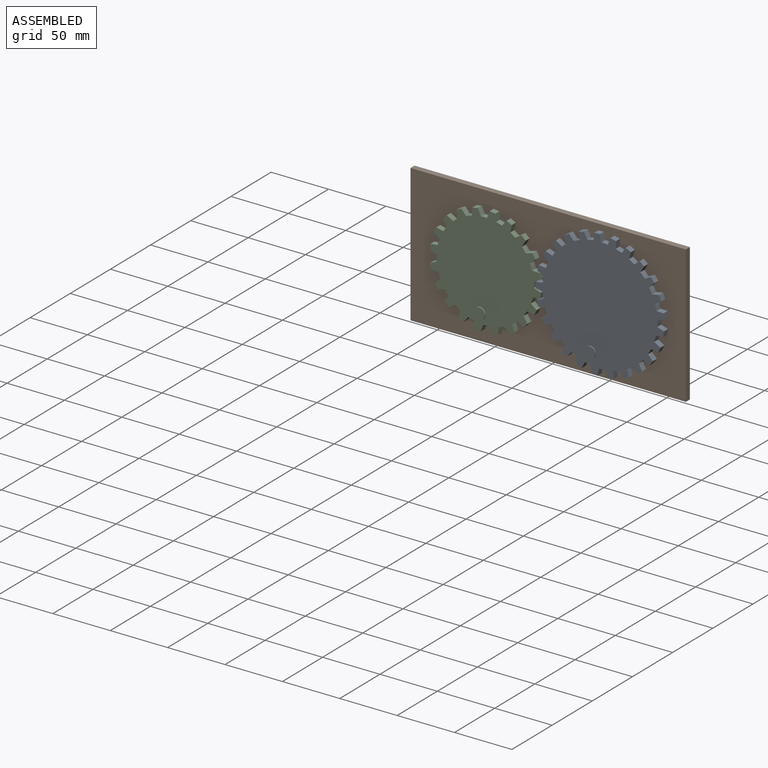
[diagram: assembled view]
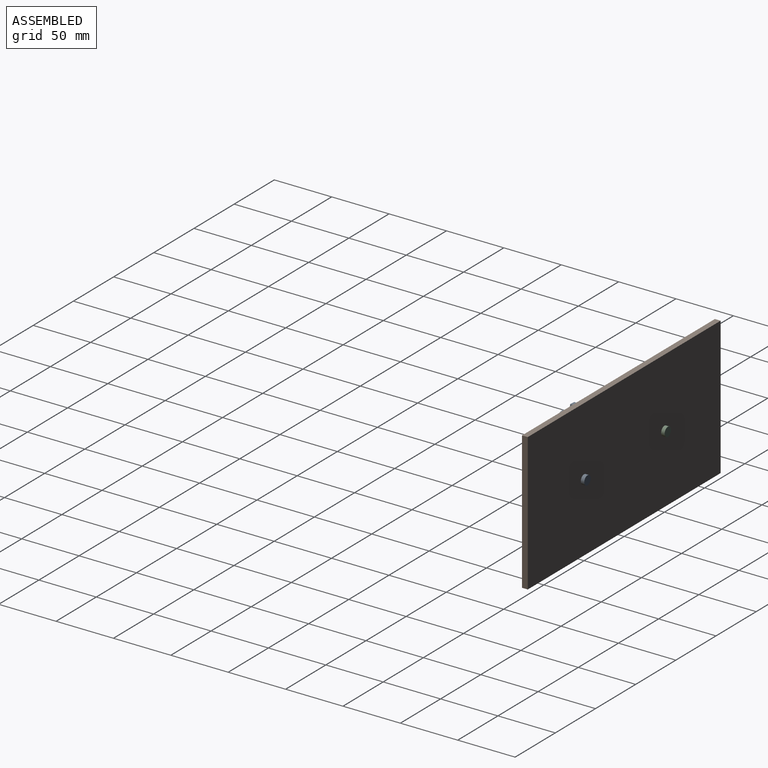
[diagram: assembled view, second angle]
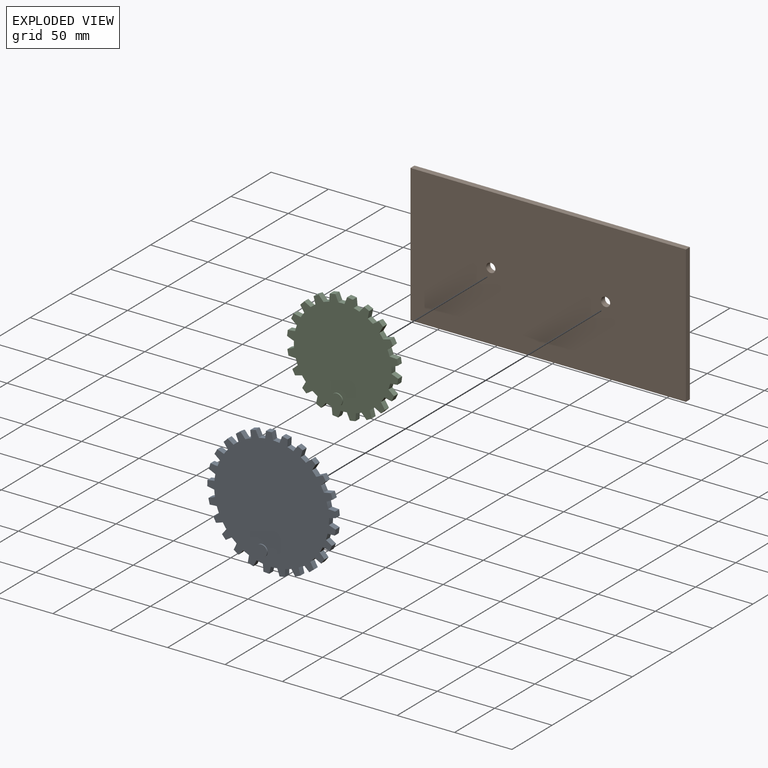
[diagram: exploded view]
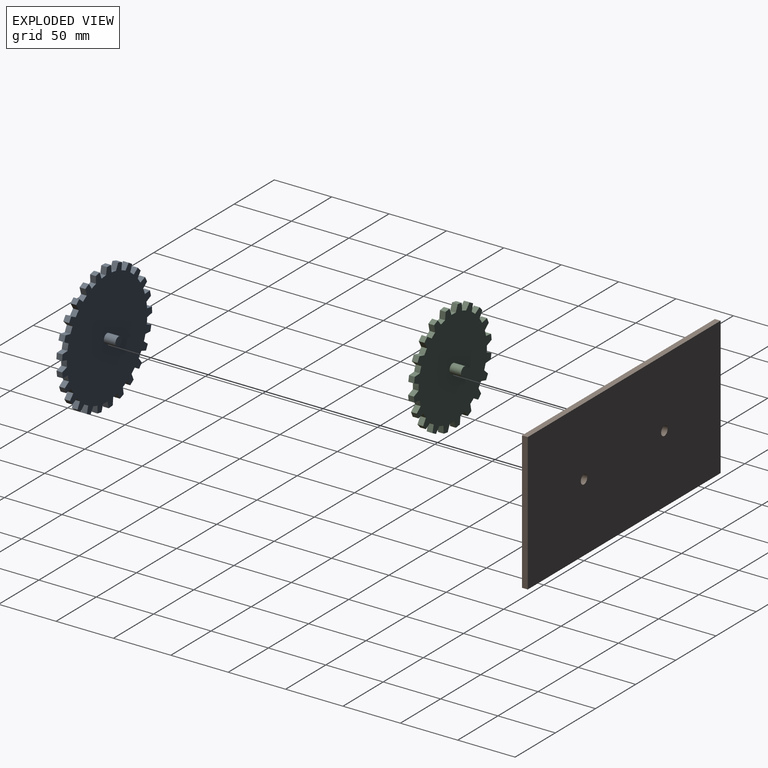
[diagram: exploded view, second angle]
ASSEMBLY  parts=3 mates=2
PART A: 106 faces, bbox 111.9x16x112.1 mm
  f0: cylinder r=4mm len=10mm, axis (0,-1,0), area 251.3mm2, adj f1,f103
  f1: plane 8x8mm, normal (0,1,0), area 50.3mm2, adj f0
  f2: plane 112.09x111.87mm, normal (0,-1,0), area 8679.5mm2, adj f3,f4,f5,f6,f7,f8,f9,f10
  f3: plane 6.13x5mm, normal (0.99,0,0.15), area 31mm2, adj f2,f4,f102,f103
  f4: cylinder r=50mm len=5.03mm, axis (0,1,0), area 27.8mm2, adj f2,f3,f5,f103
  f5: plane 5x4.63mm, normal (-0.75,0,-0.66), area 31mm2, adj f2,f4,f6,f103
  f6: plane 5x4.22mm, normal (0.54,0,-0.84), area 25mm2, adj f2,f5,f7,f103
  f7: plane 5.71x5mm, normal (0.92,0,0.39), area 31mm2, adj f2,f6,f8,f103
  f8: cylinder r=50mm len=5mm, axis (0,1,0), area 27.8mm2, adj f2,f7,f9,f103
  f9: plane 5.15x5mm, normal (-0.56,0,-0.83), area 31mm2, adj f2,f8,f10,f103
  f10: plane 5x3.65mm, normal (0.73,0,-0.68), area 25mm2, adj f2,f9,f11,f103
  f11: plane 5x4.92mm, normal (0.79,0,0.61), area 31mm2, adj f2,f10,f12,f103
  f12: cylinder r=50mm len=5mm, axis (0,1,0), area 27.8mm2, adj f2,f11,f13,f103
  f13: plane 5.85x5mm, normal (-0.33,0,-0.94), area 31mm2, adj f2,f12,f14,f103
  f14: plane 5x4.38mm, normal (0.88,0,-0.48), area 25mm2, adj f2,f13,f15,f103
  f15: plane 5x4.88mm, normal (0.62,0,0.79), area 31mm2, adj f2,f14,f16,f103
  f16: cylinder r=50mm len=5.17mm, axis (0,1,0), area 27.8mm2, adj f2,f15,f17,f103
  f17: plane 6.18x5mm, normal (-0.09,0,-1), area 31mm2, adj f2,f16,f18,f103
  f18: plane 5x4.84mm, normal (0.97,0,-0.25), area 25mm2, adj f2,f17,f19,f103
  f19: plane 5.68x5mm, normal (0.4,0,0.92), area 31mm2, adj f2,f18,f20,f103
  f20: cylinder r=50mm len=5.51mm, axis (0,1,0), area 27.8mm2, adj f2,f19,f21,f103
  f21: plane 6.12x5mm, normal (0.16,0,-0.99), area 31mm2, adj f2,f20,f22,f103
  f22: plane 5x5mm, normal (1,0,0), area 25mm2, adj f2,f21,f23,f103
  f23: plane 6.12x5mm, normal (0.16,0,0.99), area 31mm2, adj f2,f22,f24,f103
  f24: cylinder r=50mm len=5.51mm, axis (0,1,0), area 27.8mm2, adj f2,f23,f25,f103
  f25: plane 5.68x5mm, normal (0.4,0,-0.92), area 31mm2, adj f2,f24,f26,f103
  f26: plane 5x4.84mm, normal (0.97,0,0.25), area 25mm2, adj f2,f25,f27,f103
  f27: plane 6.18x5mm, normal (-0.09,0,1), area 31mm2, adj f2,f26,f28,f103
  f28: cylinder r=50mm len=5.17mm, axis (0,1,0), area 27.8mm2, adj f2,f27,f29,f103
  f29: plane 5x4.88mm, normal (0.62,0,-0.79), area 31mm2, adj f2,f28,f30,f103
  f30: plane 5x4.38mm, normal (0.88,0,0.48), area 25mm2, adj f2,f29,f31,f103
  f31: plane 5.85x5mm, normal (-0.33,0,0.94), area 31mm2, adj f2,f30,f32,f103
  f32: cylinder r=50mm len=5mm, axis (0,1,0), area 27.8mm2, adj f2,f31,f33,f103
  f33: plane 5x4.92mm, normal (0.79,0,-0.61), area 31mm2, adj f2,f32,f34,f103
  f34: plane 5x3.65mm, normal (0.73,0,0.68), area 25mm2, adj f2,f33,f35,f103
  f35: plane 5.15x5mm, normal (-0.56,0,0.83), area 31mm2, adj f2,f34,f36,f103
  f36: cylinder r=50mm len=5mm, axis (0,1,0), area 27.8mm2, adj f2,f35,f37,f103
  f37: plane 5.71x5mm, normal (0.92,0,-0.39), area 31mm2, adj f2,f36,f38,f103
  f38: plane 5x4.22mm, normal (0.54,0,0.84), area 25mm2, adj f2,f37,f39,f103
  f39: plane 5x4.63mm, normal (-0.75,0,0.66), area 31mm2, adj f2,f38,f40,f103
  f40: cylinder r=50mm len=5.03mm, axis (0,1,0), area 27.8mm2, adj f2,f39,f41,f103
  f41: plane 6.13x5mm, normal (0.99,0,-0.15), area 31mm2, adj f2,f40,f42,f103
  f42: plane 5x4.76mm, normal (0.31,0,0.95), area 25mm2, adj f2,f41,f43,f103
  f43: plane 5.51x5mm, normal (-0.89,0,0.46), area 31mm2, adj f2,f42,f44,f103
  f44: cylinder r=50mm len=5.46mm, axis (0,1,0), area 27.8mm2, adj f2,f43,f45,f103
  f45: plane 6.17x5mm, normal (1,0,0.1), area 31mm2, adj f2,f44,f46,f103
  f46: plane 5x4.99mm, normal (0.06,0,1), area 25mm2, adj f2,f45,f47,f103
  f47: plane 6.05x5mm, normal (-0.97,0,0.22), area 31mm2, adj f2,f46,f48,f103
  f48: cylinder r=50mm len=5.55mm, axis (0,1,0), area 27.8mm2, adj f2,f47,f49,f103
  f49: plane 5.83x5mm, normal (0.94,0,0.34), area 31mm2, adj f2,f48,f50,f103
  f50: plane 5x4.91mm, normal (-0.19,0,0.98), area 25mm2, adj f2,f49,f51,f103
  f51: plane 6.2x5mm, normal (-1,0,-0.03), area 31mm2, adj f2,f50,f52,f103
  f52: cylinder r=50mm len=5.29mm, axis (0,1,0), area 27.8mm2, adj f2,f51,f53,f103
  f53: plane 5.11x5mm, normal (0.82,0,0.57), area 31mm2, adj f2,f52,f54,f103
  f54: plane 5x4.52mm, normal (-0.43,0,0.9), area 25mm2, adj f2,f53,f55,f103
  f55: plane 5.97x5mm, normal (-0.96,0,-0.27), area 31mm2, adj f2,f54,f56,f103
  f56: cylinder r=50mm len=5mm, axis (0,1,0), area 27.8mm2, adj f2,f55,f57,f103
  f57: plane 5x4.67mm, normal (0.66,0,0.75), area 31mm2, adj f2,f56,f58,f103
  f58: plane 5x3.85mm, normal (-0.64,0,0.77), area 25mm2, adj f2,f57,f59,f103
  f59: plane 5.36x5mm, normal (-0.86,0,-0.5), area 31mm2, adj f2,f58,f60,f103
  f60: cylinder r=50mm len=5mm, axis (0,1,0), area 27.8mm2, adj f2,f59,f61,f103
  f61: plane 5.54x5mm, normal (0.45,0,0.89), area 31mm2, adj f2,f60,f62,f103
  f62: plane 5x4.05mm, normal (-0.81,0,0.59), area 25mm2, adj f2,f61,f63,f103
  f63: plane 5x4.41mm, normal (-0.71,0,-0.7), area 31mm2, adj f2,f62,f64,f103
  f64: cylinder r=50mm len=5mm, axis (0,1,0), area 27.8mm2, adj f2,f63,f65,f103
  f65: plane 6.06x5mm, normal (0.21,0,0.98), area 31mm2, adj f2,f64,f66,f103
  f66: plane 5x4.65mm, normal (-0.93,0,0.37), area 25mm2, adj f2,f65,f67,f103
  f67: plane 5.32x5mm, normal (-0.51,0,-0.86), area 31mm2, adj f2,f66,f68,f103
  f68: cylinder r=50mm len=5.38mm, axis (0,1,0), area 27.8mm2, adj f2,f67,f69,f103
  f69: plane 6.2x5mm, normal (-0.04,0,1), area 31mm2, adj f2,f68,f70,f103
  f70: plane 5x4.96mm, normal (-0.99,0,0.13), area 25mm2, adj f2,f69,f71,f103
  f71: plane 5.95x5mm, normal (-0.28,0,-0.96), area 31mm2, adj f2,f70,f72,f103
  f72: cylinder r=50mm len=5.56mm, axis (0,1,0), area 27.8mm2, adj f2,f71,f73,f103
  f73: plane 5.95x5mm, normal (-0.28,0,0.96), area 31mm2, adj f2,f72,f74,f103
  f74: plane 5x4.96mm, normal (-0.99,0,-0.13), area 25mm2, adj f2,f73,f75,f103
  f75: plane 6.2x5mm, normal (-0.04,0,-1), area 31mm2, adj f2,f74,f76,f103
  f76: cylinder r=50mm len=5.38mm, axis (0,1,0), area 27.8mm2, adj f2,f75,f77,f103
  f77: plane 5.32x5mm, normal (-0.51,0,0.86), area 31mm2, adj f2,f76,f78,f103
  f78: plane 5x4.65mm, normal (-0.93,0,-0.37), area 25mm2, adj f2,f77,f79,f103
  f79: plane 6.06x5mm, normal (0.21,0,-0.98), area 31mm2, adj f2,f78,f80,f103
  f80: cylinder r=50mm len=5mm, axis (0,1,0), area 27.8mm2, adj f2,f79,f81,f103
  f81: plane 5x4.41mm, normal (-0.71,0,0.7), area 31mm2, adj f2,f80,f82,f103
  f82: plane 5x4.05mm, normal (-0.81,0,-0.59), area 25mm2, adj f2,f81,f83,f103
  f83: plane 5.54x5mm, normal (0.45,0,-0.89), area 31mm2, adj f2,f82,f84,f103
  f84: cylinder r=50mm len=5mm, axis (0,1,0), area 27.8mm2, adj f2,f83,f85,f103
  f85: plane 5.36x5mm, normal (-0.86,0,0.5), area 31mm2, adj f2,f84,f86,f103
  f86: plane 5x3.85mm, normal (-0.64,0,-0.77), area 25mm2, adj f2,f85,f87,f103
  f87: plane 5x4.67mm, normal (0.66,0,-0.75), area 31mm2, adj f2,f86,f88,f103
  f88: cylinder r=50mm len=5mm, axis (0,1,0), area 27.8mm2, adj f2,f87,f89,f103
  f89: plane 5.97x5mm, normal (-0.96,0,0.27), area 31mm2, adj f2,f88,f90,f103
  f90: plane 5x4.52mm, normal (-0.43,0,-0.9), area 25mm2, adj f2,f89,f91,f103
  f91: plane 5.11x5mm, normal (0.82,0,-0.57), area 31mm2, adj f2,f90,f92,f103
  f92: cylinder r=50mm len=5.29mm, axis (0,1,0), area 27.8mm2, adj f2,f91,f93,f103
  f93: plane 6.2x5mm, normal (-1,0,0.03), area 31mm2, adj f2,f92,f94,f103
  f94: plane 5x4.91mm, normal (-0.19,0,-0.98), area 25mm2, adj f2,f93,f95,f103
  f95: plane 5.83x5mm, normal (0.94,0,-0.34), area 31mm2, adj f2,f94,f96,f103
  f96: cylinder r=50mm len=5.55mm, axis (0,1,0), area 27.8mm2, adj f2,f95,f97,f103
  f97: plane 6.05x5mm, normal (-0.97,0,-0.22), area 31mm2, adj f2,f96,f98,f103
  f98: plane 5x4.99mm, normal (0.06,0,-1), area 25mm2, adj f2,f97,f99,f103
  f99: plane 6.17x5mm, normal (1,0,-0.1), area 31mm2, adj f2,f98,f100,f103
  f100: cylinder r=50mm len=5.46mm, axis (0,1,0), area 27.8mm2, adj f2,f99,f101,f103
  f101: plane 5.51x5mm, normal (-0.89,0,-0.46), area 31mm2, adj f2,f100,f102,f103
  f102: plane 5x4.76mm, normal (0.31,0,-0.95), area 25mm2, adj f2,f3,f101,f103
  f103: plane 112.09x111.87mm, normal (0,1,0), area 8707.8mm2, adj f0,f3,f4,f5,f6,f7,f8,f9
  f104: cylinder r=5mm len=10mm, axis (0,1,0), area 31.4mm2, adj f2,f105
  f105: plane 10x10mm, normal (0,-1,0), area 78.5mm2, adj f104
PART B: 8 faces, bbox 240x5x120 mm
  f0: plane 240x120mm, normal (0,-1,0), area 28699.5mm2, adj f2,f3,f4,f5,f6,f7
  f1: plane 240x120mm, normal (0,1,0), area 28699.5mm2, adj f2,f3,f4,f5,f6,f7
  f2: plane 240x5mm, normal (0,0,-1), area 1200mm2, adj f0,f1,f3,f5
  f3: plane 120x5mm, normal (1,0,0), area 600mm2, adj f0,f1,f2,f4
  f4: plane 240x5mm, normal (0,0,1), area 1200mm2, adj f0,f1,f3,f5
  f5: plane 120x5mm, normal (-1,0,0), area 600mm2, adj f0,f1,f2,f4
  f6: cylinder r=4mm len=8mm, axis (0,-1,0), area 125.7mm2, adj f0,f1
  f7: cylinder r=4mm len=8mm, axis (0,-1,0), area 125.7mm2, adj f0,f1
PART C: 86 faces, bbox 97x16x97 mm
  f0: cylinder r=42.5mm len=5mm, axis (0,1,0), area 26.7mm2, adj f25,f26,f74,f77
  f1: cylinder r=42.5mm len=5mm, axis (0,1,0), area 26.7mm2, adj f25,f26,f76,f80
  f2: cylinder r=42.5mm len=5mm, axis (0,1,0), area 26.7mm2, adj f25,f26,f79,f81
  f3: cylinder r=42.5mm len=5.27mm, axis (0,1,0), area 26.7mm2, adj f25,f26,f29,f82
  f4: cylinder r=42.5mm len=5.27mm, axis (0,1,0), area 26.7mm2, adj f25,f26,f28,f32
  f5: cylinder r=42.5mm len=5mm, axis (0,1,0), area 26.7mm2, adj f25,f26,f31,f35
  f6: cylinder r=42.5mm len=5mm, axis (0,1,0), area 26.7mm2, adj f25,f26,f34,f38
  f7: cylinder r=42.5mm len=5mm, axis (0,1,0), area 26.7mm2, adj f25,f26,f37,f41
  f8: cylinder r=42.5mm len=5.27mm, axis (0,1,0), area 26.7mm2, adj f25,f26,f40,f44
  f9: cylinder r=42.5mm len=5.27mm, axis (0,1,0), area 26.7mm2, adj f25,f26,f43,f47
  f10: cylinder r=42.5mm len=5mm, axis (0,1,0), area 26.7mm2, adj f25,f26,f46,f50
  f11: cylinder r=42.5mm len=5mm, axis (0,1,0), area 26.7mm2, adj f25,f26,f49,f53
  f12: cylinder r=42.5mm len=5mm, axis (0,1,0), area 26.7mm2, adj f25,f26,f52,f56
  f13: cylinder r=42.5mm len=5.27mm, axis (0,1,0), area 26.7mm2, adj f25,f26,f55,f59
  f14: cylinder r=42.5mm len=5.27mm, axis (0,1,0), area 26.7mm2, adj f25,f26,f58,f62
  f15: cylinder r=42.5mm len=5mm, axis (0,1,0), area 26.7mm2, adj f25,f26,f61,f65
  f16: cylinder r=42.5mm len=5mm, axis (0,1,0), area 26.7mm2, adj f25,f26,f64,f68
  f17: cylinder r=42.5mm len=5mm, axis (0,1,0), area 26.7mm2, adj f25,f26,f67,f71
  f18: cylinder r=42.5mm len=5.27mm, axis (0,1,0), area 26.7mm2, adj f21,f25,f26,f70
  f19: cylinder r=4mm len=10mm, axis (0,-1,0), area 251.3mm2, adj f20,f26
  f20: plane 8x8mm, normal (0,1,0), area 50.3mm2, adj f19
  f21: plane 6.19x5mm, normal (0.24,0,0.97), area 31.8mm2, adj f18,f24,f25,f26
  f22: cylinder r=42.5mm len=5.27mm, axis (0,1,0), area 26.7mm2, adj f23,f25,f26,f73
  f23: plane 6.19x5mm, normal (0.24,0,-0.97), area 31.8mm2, adj f22,f24,f25,f26
  f24: plane 5x5mm, normal (1,0,0), area 25mm2, adj f21,f23,f25,f26
  f25: plane 97x97mm, normal (0,-1,0), area 6380.4mm2, adj f0,f1,f2,f3,f4,f5,f6,f7
  f26: plane 97x97mm, normal (0,1,0), area 6408.6mm2, adj f0,f1,f2,f3,f4,f5,f6,f7
  f27: plane 5x5mm, normal (0,0,-1), area 25mm2, adj f25,f26,f28,f29
  f28: plane 6.19x5mm, normal (-0.97,0,-0.24), area 31.8mm2, adj f4,f25,f26,f27
  f29: plane 6.19x5mm, normal (0.97,0,-0.24), area 31.8mm2, adj f3,f25,f26,f27
  f30: plane 5x4.76mm, normal (-0.31,0,-0.95), area 25mm2, adj f25,f26,f31,f32
  f31: plane 6.35x5mm, normal (-1,0,0.08), area 31.8mm2, adj f5,f25,f26,f30
  f32: plane 5.42x5mm, normal (0.85,0,-0.52), area 31.8mm2, adj f4,f25,f26,f30
  f33: plane 5x4.05mm, normal (-0.59,0,-0.81), area 25mm2, adj f25,f26,f34,f35
  f34: plane 5.89x5mm, normal (-0.92,0,0.38), area 31.8mm2, adj f6,f25,f26,f33
  f35: plane 5x4.85mm, normal (0.65,0,-0.76), area 31.8mm2, adj f5,f25,f26,f33
  f36: plane 5x4.05mm, normal (-0.81,0,-0.59), area 25mm2, adj f25,f26,f37,f38
  f37: plane 5x4.85mm, normal (-0.76,0,0.65), area 31.8mm2, adj f7,f25,f26,f36
  f38: plane 5.89x5mm, normal (0.38,0,-0.92), area 31.8mm2, adj f6,f25,f26,f36
  f39: plane 5x4.76mm, normal (-0.95,0,-0.31), area 25mm2, adj f25,f26,f40,f41
  f40: plane 5.42x5mm, normal (-0.52,0,0.85), area 31.8mm2, adj f8,f25,f26,f39
  f41: plane 6.35x5mm, normal (0.08,0,-1), area 31.8mm2, adj f7,f25,f26,f39
  f42: plane 5x5mm, normal (-1,0,0), area 25mm2, adj f25,f26,f43,f44
  f43: plane 6.19x5mm, normal (-0.24,0,0.97), area 31.8mm2, adj f9,f25,f26,f42
  f44: plane 6.19x5mm, normal (-0.24,0,-0.97), area 31.8mm2, adj f8,f25,f26,f42
  f45: plane 5x4.76mm, normal (-0.95,0,0.31), area 25mm2, adj f25,f26,f46,f47
  f46: plane 6.35x5mm, normal (0.08,0,1), area 31.8mm2, adj f10,f25,f26,f45
  f47: plane 5.42x5mm, normal (-0.52,0,-0.85), area 31.8mm2, adj f9,f25,f26,f45
  f48: plane 5x4.05mm, normal (-0.81,0,0.59), area 25mm2, adj f25,f26,f49,f50
  f49: plane 5.89x5mm, normal (0.38,0,0.92), area 31.8mm2, adj f11,f25,f26,f48
  f50: plane 5x4.85mm, normal (-0.76,0,-0.65), area 31.8mm2, adj f10,f25,f26,f48
  f51: plane 5x4.05mm, normal (-0.59,0,0.81), area 25mm2, adj f25,f26,f52,f53
  f52: plane 5x4.85mm, normal (0.65,0,0.76), area 31.8mm2, adj f12,f25,f26,f51
  f53: plane 5.89x5mm, normal (-0.92,0,-0.38), area 31.8mm2, adj f11,f25,f26,f51
  f54: plane 5x4.76mm, normal (-0.31,0,0.95), area 25mm2, adj f25,f26,f55,f56
  f55: plane 5.42x5mm, normal (0.85,0,0.52), area 31.8mm2, adj f13,f25,f26,f54
  f56: plane 6.35x5mm, normal (-1,0,-0.08), area 31.8mm2, adj f12,f25,f26,f54
  f57: plane 5x5mm, normal (0,0,1), area 25mm2, adj f25,f26,f58,f59
  f58: plane 6.19x5mm, normal (0.97,0,0.24), area 31.8mm2, adj f14,f25,f26,f57
  f59: plane 6.19x5mm, normal (-0.97,0,0.24), area 31.8mm2, adj f13,f25,f26,f57
  f60: plane 5x4.76mm, normal (0.31,0,0.95), area 25mm2, adj f25,f26,f61,f62
  f61: plane 6.35x5mm, normal (1,0,-0.08), area 31.8mm2, adj f15,f25,f26,f60
  f62: plane 5.42x5mm, normal (-0.85,0,0.52), area 31.8mm2, adj f14,f25,f26,f60
  f63: plane 5x4.05mm, normal (0.59,0,0.81), area 25mm2, adj f25,f26,f64,f65
  f64: plane 5.89x5mm, normal (0.92,0,-0.38), area 31.8mm2, adj f16,f25,f26,f63
  f65: plane 5x4.85mm, normal (-0.65,0,0.76), area 31.8mm2, adj f15,f25,f26,f63
  f66: plane 5x4.05mm, normal (0.81,0,0.59), area 25mm2, adj f25,f26,f67,f68
  f67: plane 5x4.85mm, normal (0.76,0,-0.65), area 31.8mm2, adj f17,f25,f26,f66
  f68: plane 5.89x5mm, normal (-0.38,0,0.92), area 31.8mm2, adj f16,f25,f26,f66
  f69: plane 5x4.76mm, normal (0.95,0,0.31), area 25mm2, adj f25,f26,f70,f71
  f70: plane 5.42x5mm, normal (0.52,0,-0.85), area 31.8mm2, adj f18,f25,f26,f69
  f71: plane 6.35x5mm, normal (-0.08,0,1), area 31.8mm2, adj f17,f25,f26,f69
  f72: plane 5x4.76mm, normal (0.95,0,-0.31), area 25mm2, adj f25,f26,f73,f74
  f73: plane 5.42x5mm, normal (0.52,0,0.85), area 31.8mm2, adj f22,f25,f26,f72
  f74: plane 6.35x5mm, normal (-0.08,0,-1), area 31.8mm2, adj f0,f25,f26,f72
  f75: plane 5x4.05mm, normal (0.81,0,-0.59), area 25mm2, adj f25,f26,f76,f77
  f76: plane 5.89x5mm, normal (-0.38,0,-0.92), area 31.8mm2, adj f1,f25,f26,f75
  f77: plane 5x4.85mm, normal (0.76,0,0.65), area 31.8mm2, adj f0,f25,f26,f75
  f78: plane 5x4.05mm, normal (0.59,0,-0.81), area 25mm2, adj f25,f26,f79,f80
  f79: plane 5x4.85mm, normal (-0.65,0,-0.76), area 31.8mm2, adj f2,f25,f26,f78
  f80: plane 5.89x5mm, normal (0.92,0,0.38), area 31.8mm2, adj f1,f25,f26,f78
  f81: plane 6.35x5mm, normal (1,0,0.08), area 31.8mm2, adj f2,f25,f26,f83
  f82: plane 5.42x5mm, normal (-0.85,0,-0.52), area 31.8mm2, adj f3,f25,f26,f83
  f83: plane 5x4.76mm, normal (0.31,0,-0.95), area 25mm2, adj f25,f26,f81,f82
  f84: cylinder r=5mm len=10mm, axis (0,1,0), area 31.4mm2, adj f25,f85
  f85: plane 10x10mm, normal (0,-1,0), area 78.5mm2, adj f84
PLACE A rot(axis=(0,-1,0),78.1deg) t=(39.66,-2,-48.92)mm
PLACE B at identity fixed
PLACE C rot(axis=(0,1,0),97.6deg) t=(-56.6,-2,-49.56)mm
MATE revolute B.f7 <-> C.f19  axis (0,-1,0) through (-50,-5,0)mm
MATE revolute B.f6 <-> A.f4  axis (0,-1,0) through (50,-5,0)mm
